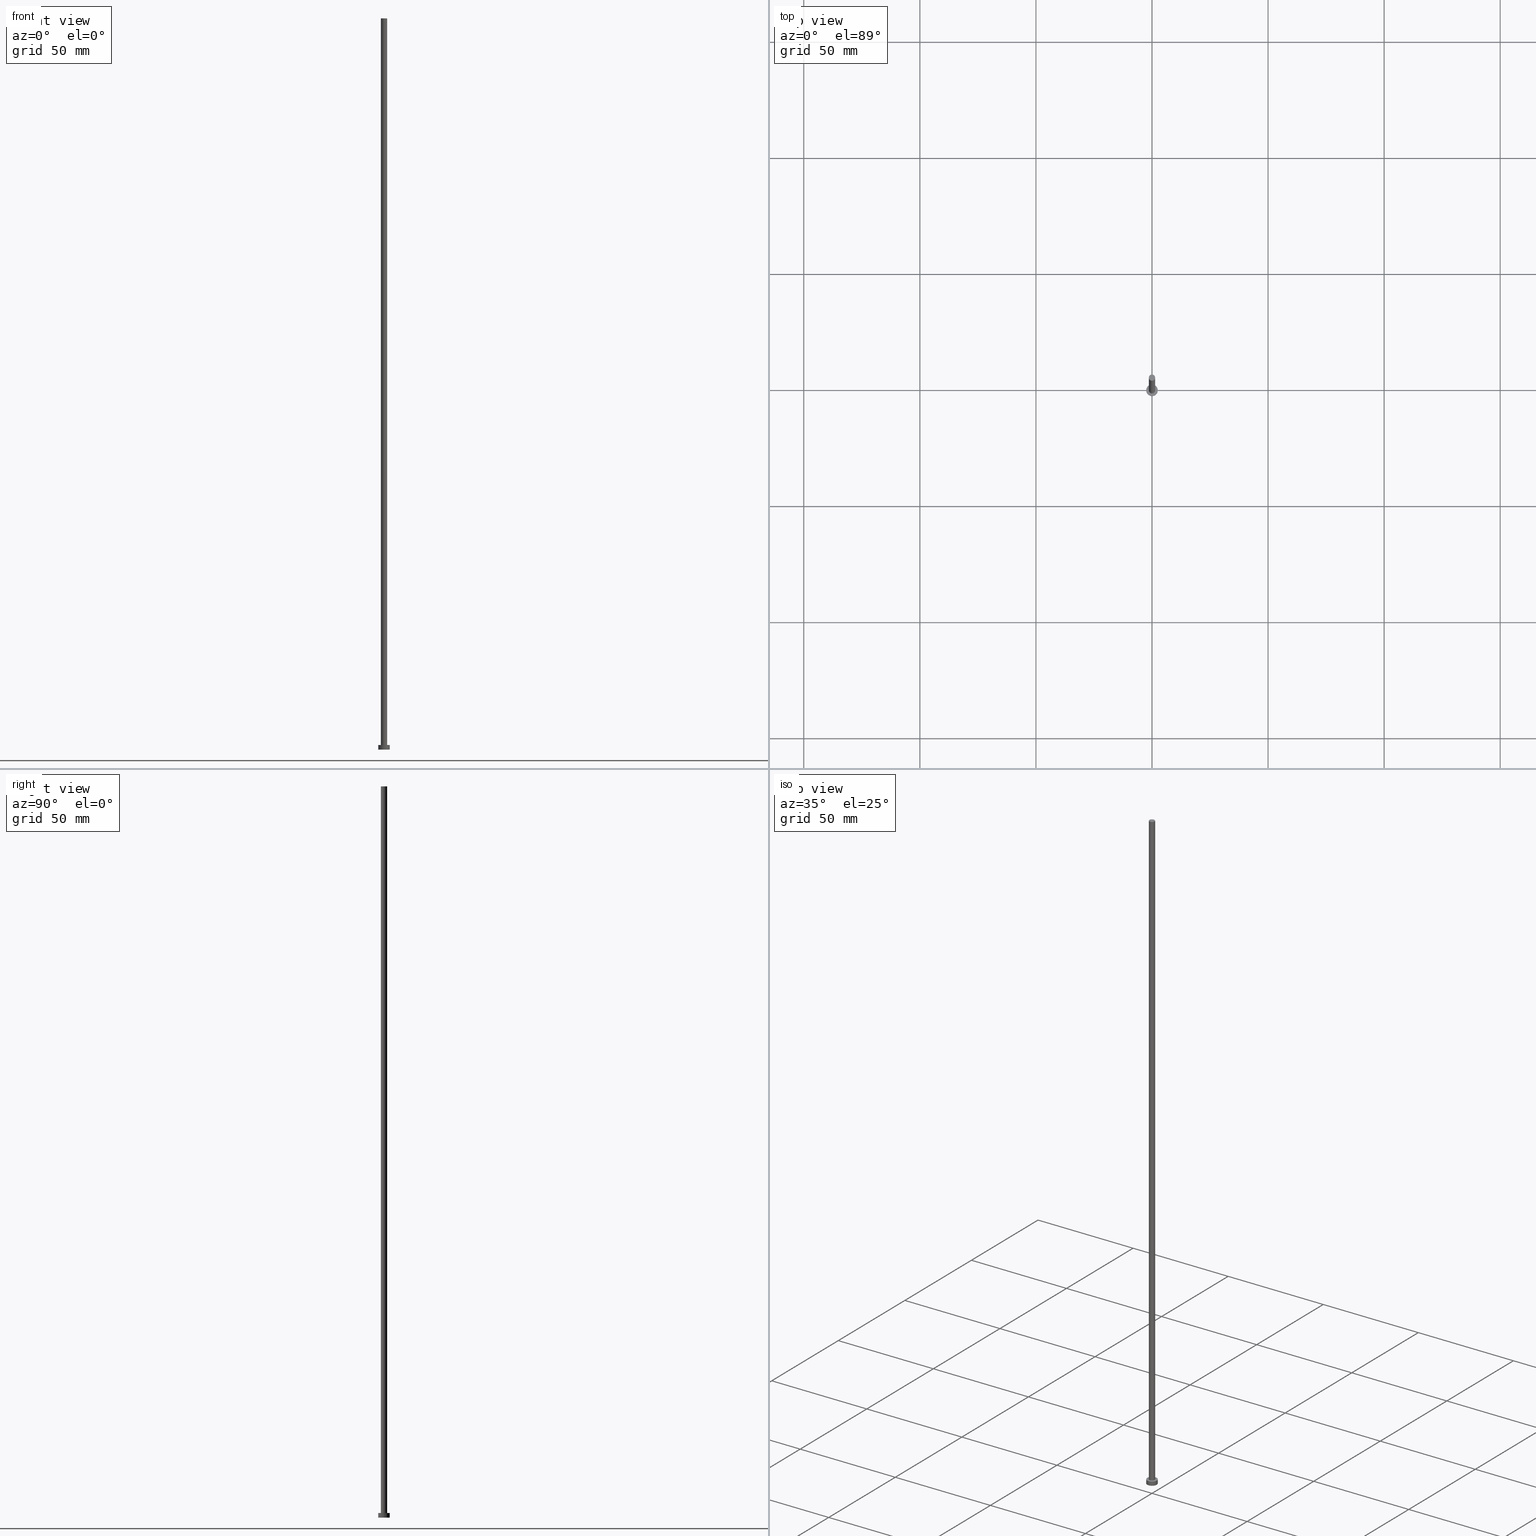
[diagram: canonical four-view strip — front | top / right | iso, engineering-drawing reading convention]
A machine part, canonical four-view strip (front | top / right | iso — engineering-drawing reading convention). The complete STEP part file that produces these views, byte-faithful:
ISO-10303-21;
HEADER;
FILE_DESCRIPTION (( 'STEP AP203' ),
    '1' );
FILE_NAME ('94ec.STEP',
    '2026-02-06T12:30:49',
    ( '' ),
    ( '' ),
    'SwSTEP 2.0',
    'SolidWorks 2019',
    '' );
FILE_SCHEMA (( 'CONFIG_CONTROL_DESIGN' ));
ENDSEC;

DATA;
#1 = DIRECTION ( 'NONE',  ( 1.000000000000000000, 0.000000000000000000, 0.000000000000000000 ) ) ;
#2 = CC_DESIGN_DATE_AND_TIME_ASSIGNMENT ( #198, #252, ( #116 ) ) ;
#3 = PRODUCT ( '94ec', '94ec', '', ( #18 ) ) ;
#4 = CC_DESIGN_PERSON_AND_ORGANIZATION_ASSIGNMENT ( #162, #229, ( #24 ) ) ;
#5 = ORIENTED_EDGE ( 'NONE', *, *, #188, .T. ) ;
#6 = DIRECTION ( 'NONE',  ( -0.000000000000000000, -0.000000000000000000, -1.000000000000000000 ) ) ;
#7 = CIRCLE ( 'NONE', #195, 2.500000000000000000 ) ;
#8 = ORIENTED_EDGE ( 'NONE', *, *, #137, .F. ) ;
#9 = APPROVAL_STATUS ( 'not_yet_approved' ) ;
#10 = CIRCLE ( 'NONE', #44, 1.350000000000000089 ) ;
#11 = DIRECTION ( 'NONE',  ( 1.000000000000000000, 0.000000000000000000, 0.000000000000000000 ) ) ;
#12 = VERTEX_POINT ( 'NONE', #126 ) ;
#13 = PERSON_AND_ORGANIZATION_ROLE ( 'creator' ) ;
#14 = CARTESIAN_POINT ( 'NONE',  ( 0.000000000000000000, 0.000000000000000000, 315.0000000000000000 ) ) ;
#15 = VECTOR ( 'NONE', #216, 1000.000000000000000 ) ;
#16 = CIRCLE ( 'NONE', #156, 1.350000000000000089 ) ;
#17 = AXIS2_PLACEMENT_3D ( 'NONE', #150, #75, #40 ) ;
#18 = MECHANICAL_CONTEXT ( 'NONE', #175, 'mechanical' ) ;
#19 = UNCERTAINTY_MEASURE_WITH_UNIT (LENGTH_MEASURE( 1.000000000000000082E-05 ), #118, 'distance_accuracy_value', 'NONE');
#20 = PERSON_AND_ORGANIZATION ( #218, #157 ) ;
#21 = AXIS2_PLACEMENT_3D ( 'NONE', #255, #234, #76 ) ;
#22 = CARTESIAN_POINT ( 'NONE',  ( -2.500000000000000000, 0.000000000000000000, 2.000000000000000000 ) ) ;
#23 = DIRECTION ( 'NONE',  ( -0.000000000000000000, -0.000000000000000000, -1.000000000000000000 ) ) ;
#24 = PRODUCT_DEFINITION_FORMATION_WITH_SPECIFIED_SOURCE ( 'LIBOVOLN�', '', #3, .NOT_KNOWN. ) ;
#25 = AXIS2_PLACEMENT_3D ( 'NONE', #38, #187, #125 ) ;
#26 = VECTOR ( 'NONE', #167, 1000.000000000000000 ) ;
#27 = EDGE_CURVE ( 'NONE', #122, #106, #89, .T. ) ;
#28 = EDGE_LOOP ( 'NONE', ( #203, #206 ) ) ;
#29 = CC_DESIGN_APPROVAL ( #139, ( #78 ) ) ;
#30 = ORIENTED_EDGE ( 'NONE', *, *, #239, .F. ) ;
#31 = DATE_AND_TIME ( #69, #212 ) ;
#32 = ADVANCED_FACE ( 'NONE', ( #147 ), #231, .T. ) ;
#33 = ORIENTED_EDGE ( 'NONE', *, *, #94, .T. ) ;
#34 = APPROVAL_ROLE ( '' ) ;
#35 = FACE_OUTER_BOUND ( 'NONE', #181, .T. ) ;
#36 = VERTEX_POINT ( 'NONE', #172 ) ;
#37 = CALENDAR_DATE ( 2026, 6, 2 ) ;
#38 = CARTESIAN_POINT ( 'NONE',  ( 0.000000000000000000, 0.000000000000000000, 2.000000000000000000 ) ) ;
#39 = CC_DESIGN_PERSON_AND_ORGANIZATION_ASSIGNMENT ( #244, #13, ( #78 ) ) ;
#40 = DIRECTION ( 'NONE',  ( 1.000000000000000000, 0.000000000000000000, 0.000000000000000000 ) ) ;
#41 =( GEOMETRIC_REPRESENTATION_CONTEXT ( 3 ) GLOBAL_UNCERTAINTY_ASSIGNED_CONTEXT ( ( #19 ) ) GLOBAL_UNIT_ASSIGNED_CONTEXT ( ( #118, #197, #211 ) ) REPRESENTATION_CONTEXT ( 'NONE', 'WORKASPACE' ) );
#42 = DIRECTION ( 'NONE',  ( 0.000000000000000000, 0.000000000000000000, 1.000000000000000000 ) ) ;
#43 = FACE_BOUND ( 'NONE', #104, .T. ) ;
#44 = AXIS2_PLACEMENT_3D ( 'NONE', #51, #230, #11 ) ;
#45 = CC_DESIGN_PERSON_AND_ORGANIZATION_ASSIGNMENT ( #184, #72, ( #116 ) ) ;
#46 = SHAPE_DEFINITION_REPRESENTATION ( #241, #158 ) ;
#47 = DIRECTION ( 'NONE',  ( 0.000000000000000000, 0.000000000000000000, 1.000000000000000000 ) ) ;
#48 = APPROVAL_PERSON_ORGANIZATION ( #95, #139, #232 ) ;
#49 = EDGE_CURVE ( 'NONE', #68, #145, #7, .T. ) ;
#50 = EDGE_LOOP ( 'NONE', ( #208, #242, #65, #117 ) ) ;
#51 = CARTESIAN_POINT ( 'NONE',  ( 0.000000000000000000, 0.000000000000000000, 315.0000000000000000 ) ) ;
#52 = EDGE_LOOP ( 'NONE', ( #186, #228 ) ) ;
#53 = DIRECTION ( 'NONE',  ( -0.000000000000000000, -0.000000000000000000, -1.000000000000000000 ) ) ;
#54 = ORIENTED_EDGE ( 'NONE', *, *, #49, .F. ) ;
#55 = COORDINATED_UNIVERSAL_TIME_OFFSET ( 1, 0, .AHEAD. ) ;
#56 = APPROVAL ( #148, 'NEUR�EN�' ) ;
#57 = CALENDAR_DATE ( 2026, 6, 2 ) ;
#58 = EDGE_CURVE ( 'NONE', #68, #36, #236, .T. ) ;
#59 = CARTESIAN_POINT ( 'NONE',  ( 0.000000000000000000, 0.000000000000000000, 315.0000000000000000 ) ) ;
#60 = AXIS2_PLACEMENT_3D ( 'NONE', #67, #53, #88 ) ;
#61 = DIRECTION ( 'NONE',  ( 0.000000000000000000, 0.000000000000000000, 1.000000000000000000 ) ) ;
#62 = VECTOR ( 'NONE', #141, 1000.000000000000000 ) ;
#63 = VERTEX_POINT ( 'NONE', #153 ) ;
#64 = COORDINATED_UNIVERSAL_TIME_OFFSET ( 1, 0, .AHEAD. ) ;
#65 = ORIENTED_EDGE ( 'NONE', *, *, #27, .T. ) ;
#66 = DIRECTION ( 'NONE',  ( -1.000000000000000000, 0.000000000000000000, 0.000000000000000000 ) ) ;
#67 = CARTESIAN_POINT ( 'NONE',  ( 0.000000000000000000, 0.000000000000000000, 315.0000000000000000 ) ) ;
#68 = VERTEX_POINT ( 'NONE', #134 ) ;
#69 = CALENDAR_DATE ( 2026, 6, 2 ) ;
#70 = FACE_OUTER_BOUND ( 'NONE', #52, .T. ) ;
#71 = EDGE_LOOP ( 'NONE', ( #120, #221 ) ) ;
#72 = PERSON_AND_ORGANIZATION_ROLE ( 'classification_officer' ) ;
#73 = APPROVAL ( #9, 'NEUR�EN�' ) ;
#74 = APPLICATION_PROTOCOL_DEFINITION ( 'international standard', 'config_control_design', 1994, #175 ) ;
#75 = DIRECTION ( 'NONE',  ( 0.000000000000000000, 0.000000000000000000, 1.000000000000000000 ) ) ;
#76 = DIRECTION ( 'NONE',  ( 1.000000000000000000, 0.000000000000000000, 0.000000000000000000 ) ) ;
#77 = LINE ( 'NONE', #193, #169 ) ;
#78 = PRODUCT_DEFINITION ( 'NEZN�M�', '', #24, #115 ) ;
#79 = LOCAL_TIME ( 13, 30, 49.00000000000000000, #55 ) ;
#80 = ADVANCED_FACE ( 'NONE', ( #43, #97 ), #110, .T. ) ;
#81 = CIRCLE ( 'NONE', #128, 2.500000000000000000 ) ;
#82 = ORIENTED_EDGE ( 'NONE', *, *, #27, .F. ) ;
#83 = CARTESIAN_POINT ( 'NONE',  ( 0.000000000000000000, 0.000000000000000000, 2.000000000000000000 ) ) ;
#84 = DIRECTION ( 'NONE',  ( 1.000000000000000000, 0.000000000000000000, 0.000000000000000000 ) ) ;
#85 = ORIENTED_EDGE ( 'NONE', *, *, #58, .F. ) ;
#86 = CALENDAR_DATE ( 2026, 6, 2 ) ;
#87 = AXIS2_PLACEMENT_3D ( 'NONE', #14, #227, #144 ) ;
#88 = DIRECTION ( 'NONE',  ( -1.000000000000000000, 0.000000000000000000, 0.000000000000000000 ) ) ;
#89 = LINE ( 'NONE', #130, #26 ) ;
#90 = PERSON_AND_ORGANIZATION ( #218, #157 ) ;
#91 = CARTESIAN_POINT ( 'NONE',  ( -1.350000000000000089, 0.000000000000000000, 2.000000000000000000 ) ) ;
#92 = AXIS2_PLACEMENT_3D ( 'NONE', #185, #226, #161 ) ;
#93 = APPROVAL_DATE_TIME ( #213, #139 ) ;
#94 = EDGE_CURVE ( 'NONE', #196, #36, #215, .T. ) ;
#95 = PERSON_AND_ORGANIZATION ( #218, #157 ) ;
#96 = CARTESIAN_POINT ( 'NONE',  ( 0.000000000000000000, 0.000000000000000000, 2.000000000000000000 ) ) ;
#97 = FACE_OUTER_BOUND ( 'NONE', #71, .T. ) ;
#98 = EDGE_CURVE ( 'NONE', #12, #63, #77, .T. ) ;
#99 = EDGE_CURVE ( 'NONE', #63, #106, #240, .T. ) ;
#100 = LOCAL_TIME ( 13, 30, 49.00000000000000000, #223 ) ;
#101 = EDGE_LOOP ( 'NONE', ( #30, #251, #33, #85 ) ) ;
#102 = CYLINDRICAL_SURFACE ( 'NONE', #190, 2.500000000000000000 ) ;
#103 = CARTESIAN_POINT ( 'NONE',  ( 2.500000000000000000, 3.061616997868383141E-16, 2.000000000000000000 ) ) ;
#104 = EDGE_LOOP ( 'NONE', ( #140, #142 ) ) ;
#105 = CYLINDRICAL_SURFACE ( 'NONE', #92, 1.350000000000000089 ) ;
#106 = VERTEX_POINT ( 'NONE', #91 ) ;
#107 = CARTESIAN_POINT ( 'NONE',  ( 2.500000000000000000, 3.061616997868383141E-16, 2.000000000000000000 ) ) ;
#108 = PERSON_AND_ORGANIZATION_ROLE ( 'design_owner' ) ;
#109 = APPLICATION_PROTOCOL_DEFINITION ( 'international standard', 'config_control_design', 1994, #138 ) ;
#110 = PLANE ( 'NONE',  #220 ) ;
#111 = CARTESIAN_POINT ( 'NONE',  ( 0.000000000000000000, 0.000000000000000000, 0.000000000000000000 ) ) ;
#112 = ADVANCED_FACE ( 'NONE', ( #166 ), #170, .T. ) ;
#113 = AXIS2_PLACEMENT_3D ( 'NONE', #59, #214, #155 ) ;
#114 = EDGE_CURVE ( 'NONE', #122, #12, #154, .T. ) ;
#115 = DESIGN_CONTEXT ( 'detailed design', #138, 'design' ) ;
#116 = SECURITY_CLASSIFICATION ( '', '', #249 ) ;
#117 = ORIENTED_EDGE ( 'NONE', *, *, #191, .T. ) ;
#118 =( LENGTH_UNIT ( ) NAMED_UNIT ( * ) SI_UNIT ( .MILLI., .METRE. ) );
#119 = PRODUCT_RELATED_PRODUCT_CATEGORY ( 'detail', '', ( #3 ) ) ;
#120 = ORIENTED_EDGE ( 'NONE', *, *, #49, .T. ) ;
#121 = CARTESIAN_POINT ( 'NONE',  ( 0.000000000000000000, 0.000000000000000000, 0.000000000000000000 ) ) ;
#122 = VERTEX_POINT ( 'NONE', #146 ) ;
#123 = CALENDAR_DATE ( 2026, 6, 2 ) ;
#124 = ADVANCED_FACE ( 'NONE', ( #70 ), #250, .F. ) ;
#125 = DIRECTION ( 'NONE',  ( -1.000000000000000000, 0.000000000000000000, 0.000000000000000000 ) ) ;
#126 = CARTESIAN_POINT ( 'NONE',  ( 1.350000000000000089, 1.653273178848926867E-16, 315.0000000000000000 ) ) ;
#127 = DATE_AND_TIME ( #37, #79 ) ;
#128 = AXIS2_PLACEMENT_3D ( 'NONE', #219, #179, #159 ) ;
#129 = FACE_OUTER_BOUND ( 'NONE', #164, .T. ) ;
#130 = CARTESIAN_POINT ( 'NONE',  ( -1.350000000000000089, 0.000000000000000000, 315.0000000000000000 ) ) ;
#131 = APPROVAL_DATE_TIME ( #127, #56 ) ;
#132 = COORDINATED_UNIVERSAL_TIME_OFFSET ( 1, 0, .AHEAD. ) ;
#133 = LOCAL_TIME ( 13, 30, 49.00000000000000000, #180 ) ;
#134 = CARTESIAN_POINT ( 'NONE',  ( -2.500000000000000000, 0.000000000000000000, 2.000000000000000000 ) ) ;
#135 = DIRECTION ( 'NONE',  ( 1.000000000000000000, 0.000000000000000000, 0.000000000000000000 ) ) ;
#136 = CC_DESIGN_DATE_AND_TIME_ASSIGNMENT ( #204, #165, ( #78 ) ) ;
#137 = EDGE_CURVE ( 'NONE', #12, #122, #10, .T. ) ;
#138 = APPLICATION_CONTEXT ( 'configuration controlled 3d designs of mechanical parts and assemblies' ) ;
#139 = APPROVAL ( #152, 'NEUR�EN�' ) ;
#140 = ORIENTED_EDGE ( 'NONE', *, *, #191, .F. ) ;
#141 = DIRECTION ( 'NONE',  ( -0.000000000000000000, -0.000000000000000000, -1.000000000000000000 ) ) ;
#142 = ORIENTED_EDGE ( 'NONE', *, *, #99, .F. ) ;
#143 = CARTESIAN_POINT ( 'NONE',  ( 0.000000000000000000, 0.000000000000000000, 2.000000000000000000 ) ) ;
#144 = DIRECTION ( 'NONE',  ( 1.000000000000000000, 0.000000000000000000, 0.000000000000000000 ) ) ;
#145 = VERTEX_POINT ( 'NONE', #107 ) ;
#146 = CARTESIAN_POINT ( 'NONE',  ( -1.350000000000000089, 0.000000000000000000, 315.0000000000000000 ) ) ;
#147 = FACE_OUTER_BOUND ( 'NONE', #28, .T. ) ;
#148 = APPROVAL_STATUS ( 'not_yet_approved' ) ;
#149 = MANIFOLD_SOLID_BREP ( 'P�idat vysunut�m3', #160 ) ;
#150 = CARTESIAN_POINT ( 'NONE',  ( 0.000000000000000000, 0.000000000000000000, 0.000000000000000000 ) ) ;
#151 = AXIS2_PLACEMENT_3D ( 'NONE', #111, #174, #1 ) ;
#152 = APPROVAL_STATUS ( 'not_yet_approved' ) ;
#153 = CARTESIAN_POINT ( 'NONE',  ( 1.350000000000000089, 1.653273178848926867E-16, 2.000000000000000000 ) ) ;
#154 = CIRCLE ( 'NONE', #87, 1.350000000000000089 ) ;
#155 = DIRECTION ( 'NONE',  ( 1.000000000000000000, 0.000000000000000000, -0.000000000000000000 ) ) ;
#156 = AXIS2_PLACEMENT_3D ( 'NONE', #143, #47, #84 ) ;
#157 = ORGANIZATION ( 'NEUR�EN�', 'NEUR�EN�', '' ) ;
#158 = ADVANCED_BREP_SHAPE_REPRESENTATION ( '94ec', ( #149, #17 ), #41 ) ;
#159 = DIRECTION ( 'NONE',  ( 1.000000000000000000, 0.000000000000000000, 0.000000000000000000 ) ) ;
#160 = CLOSED_SHELL ( 'NONE', ( #173, #217, #163, #80, #124, #112, #32 ) ) ;
#161 = DIRECTION ( 'NONE',  ( -1.000000000000000000, 0.000000000000000000, 0.000000000000000000 ) ) ;
#162 = PERSON_AND_ORGANIZATION ( #218, #157 ) ;
#163 = ADVANCED_FACE ( 'NONE', ( #129 ), #207, .T. ) ;
#164 = EDGE_LOOP ( 'NONE', ( #178, #54, #225, #5 ) ) ;
#165 = DATE_TIME_ROLE ( 'creation_date' ) ;
#166 = FACE_OUTER_BOUND ( 'NONE', #50, .T. ) ;
#167 = DIRECTION ( 'NONE',  ( -0.000000000000000000, -0.000000000000000000, -1.000000000000000000 ) ) ;
#168 = PERSON_AND_ORGANIZATION ( #218, #157 ) ;
#169 = VECTOR ( 'NONE', #23, 1000.000000000000000 ) ;
#170 = CYLINDRICAL_SURFACE ( 'NONE', #60, 1.350000000000000089 ) ;
#171 = CC_DESIGN_PERSON_AND_ORGANIZATION_ASSIGNMENT ( #168, #202, ( #24 ) ) ;
#172 = CARTESIAN_POINT ( 'NONE',  ( -2.500000000000000000, 0.000000000000000000, 0.000000000000000000 ) ) ;
#173 = ADVANCED_FACE ( 'NONE', ( #35 ), #105, .T. ) ;
#174 = DIRECTION ( 'NONE',  ( 0.000000000000000000, 0.000000000000000000, 1.000000000000000000 ) ) ;
#175 = APPLICATION_CONTEXT ( 'configuration controlled 3d designs of mechanical parts and assemblies' ) ;
#176 = DIRECTION ( 'NONE',  ( 1.000000000000000000, 0.000000000000000000, -0.000000000000000000 ) ) ;
#177 = APPROVAL_PERSON_ORGANIZATION ( #90, #56, #183 ) ;
#178 = ORIENTED_EDGE ( 'NONE', *, *, #210, .F. ) ;
#179 = DIRECTION ( 'NONE',  ( 0.000000000000000000, 0.000000000000000000, 1.000000000000000000 ) ) ;
#180 = COORDINATED_UNIVERSAL_TIME_OFFSET ( 1, 0, .AHEAD. ) ;
#181 = EDGE_LOOP ( 'NONE', ( #8, #248, #200, #82 ) ) ;
#182 = FACE_OUTER_BOUND ( 'NONE', #101, .T. ) ;
#183 = APPROVAL_ROLE ( '' ) ;
#184 = PERSON_AND_ORGANIZATION ( #218, #157 ) ;
#185 = CARTESIAN_POINT ( 'NONE',  ( 0.000000000000000000, 0.000000000000000000, 315.0000000000000000 ) ) ;
#186 = ORIENTED_EDGE ( 'NONE', *, *, #188, .F. ) ;
#187 = DIRECTION ( 'NONE',  ( -0.000000000000000000, -0.000000000000000000, -1.000000000000000000 ) ) ;
#188 = EDGE_CURVE ( 'NONE', #36, #196, #238, .T. ) ;
#189 = AXIS2_PLACEMENT_3D ( 'NONE', #121, #243, #222 ) ;
#190 = AXIS2_PLACEMENT_3D ( 'NONE', #83, #6, #66 ) ;
#191 = EDGE_CURVE ( 'NONE', #106, #63, #16, .T. ) ;
#192 = CARTESIAN_POINT ( 'NONE',  ( 0.000000000000000000, 0.000000000000000000, 2.000000000000000000 ) ) ;
#193 = CARTESIAN_POINT ( 'NONE',  ( 1.350000000000000089, 1.653273178848926867E-16, 315.0000000000000000 ) ) ;
#194 = LOCAL_TIME ( 13, 30, 49.00000000000000000, #132 ) ;
#195 = AXIS2_PLACEMENT_3D ( 'NONE', #192, #61, #135 ) ;
#196 = VERTEX_POINT ( 'NONE', #245 ) ;
#197 =( NAMED_UNIT ( * ) PLANE_ANGLE_UNIT ( ) SI_UNIT ( $, .RADIAN. ) );
#198 = DATE_AND_TIME ( #86, #100 ) ;
#199 = CC_DESIGN_APPROVAL ( #56, ( #24 ) ) ;
#200 = ORIENTED_EDGE ( 'NONE', *, *, #99, .T. ) ;
#201 = LINE ( 'NONE', #103, #62 ) ;
#202 = PERSON_AND_ORGANIZATION_ROLE ( 'creator' ) ;
#203 = ORIENTED_EDGE ( 'NONE', *, *, #114, .T. ) ;
#204 = DATE_AND_TIME ( #123, #133 ) ;
#205 = CARTESIAN_POINT ( 'NONE',  ( 0.000000000000000000, 0.000000000000000000, 0.000000000000000000 ) ) ;
#206 = ORIENTED_EDGE ( 'NONE', *, *, #137, .T. ) ;
#207 = CYLINDRICAL_SURFACE ( 'NONE', #25, 2.500000000000000000 ) ;
#208 = ORIENTED_EDGE ( 'NONE', *, *, #98, .F. ) ;
#209 = PERSON_AND_ORGANIZATION ( #218, #157 ) ;
#210 = EDGE_CURVE ( 'NONE', #145, #196, #201, .T. ) ;
#211 =( NAMED_UNIT ( * ) SI_UNIT ( $, .STERADIAN. ) SOLID_ANGLE_UNIT ( ) );
#212 = LOCAL_TIME ( 13, 30, 49.00000000000000000, #64 ) ;
#213 = DATE_AND_TIME ( #57, #194 ) ;
#214 = DIRECTION ( 'NONE',  ( 0.000000000000000000, 0.000000000000000000, 1.000000000000000000 ) ) ;
#215 = CIRCLE ( 'NONE', #151, 2.500000000000000000 ) ;
#216 = DIRECTION ( 'NONE',  ( -0.000000000000000000, -0.000000000000000000, -1.000000000000000000 ) ) ;
#217 = ADVANCED_FACE ( 'NONE', ( #182 ), #102, .T. ) ;
#218 = PERSON ( 'NEUR�EN�', 'NEUR�EN�', 'NEUR�EN�', ('NEUR�EN�'), ('NEUR�EN�'), ('NEUR�EN�') ) ;
#219 = CARTESIAN_POINT ( 'NONE',  ( 0.000000000000000000, 0.000000000000000000, 2.000000000000000000 ) ) ;
#220 = AXIS2_PLACEMENT_3D ( 'NONE', #96, #42, #176 ) ;
#221 = ORIENTED_EDGE ( 'NONE', *, *, #239, .T. ) ;
#222 = DIRECTION ( 'NONE',  ( 1.000000000000000000, 0.000000000000000000, 0.000000000000000000 ) ) ;
#223 = COORDINATED_UNIVERSAL_TIME_OFFSET ( 1, 0, .AHEAD. ) ;
#224 = CC_DESIGN_SECURITY_CLASSIFICATION ( #116, ( #24 ) ) ;
#225 = ORIENTED_EDGE ( 'NONE', *, *, #58, .T. ) ;
#226 = DIRECTION ( 'NONE',  ( -0.000000000000000000, -0.000000000000000000, -1.000000000000000000 ) ) ;
#227 = DIRECTION ( 'NONE',  ( 0.000000000000000000, 0.000000000000000000, 1.000000000000000000 ) ) ;
#228 = ORIENTED_EDGE ( 'NONE', *, *, #94, .F. ) ;
#229 = PERSON_AND_ORGANIZATION_ROLE ( 'design_supplier' ) ;
#230 = DIRECTION ( 'NONE',  ( 0.000000000000000000, 0.000000000000000000, 1.000000000000000000 ) ) ;
#231 = PLANE ( 'NONE',  #113 ) ;
#232 = APPROVAL_ROLE ( '' ) ;
#233 = APPROVAL_PERSON_ORGANIZATION ( #209, #73, #34 ) ;
#234 = DIRECTION ( 'NONE',  ( 0.000000000000000000, 0.000000000000000000, 1.000000000000000000 ) ) ;
#235 = AXIS2_PLACEMENT_3D ( 'NONE', #205, #253, #247 ) ;
#236 = LINE ( 'NONE', #22, #15 ) ;
#237 = CC_DESIGN_PERSON_AND_ORGANIZATION_ASSIGNMENT ( #20, #108, ( #3 ) ) ;
#238 = CIRCLE ( 'NONE', #189, 2.500000000000000000 ) ;
#239 = EDGE_CURVE ( 'NONE', #145, #68, #81, .T. ) ;
#240 = CIRCLE ( 'NONE', #21, 1.350000000000000089 ) ;
#241 = PRODUCT_DEFINITION_SHAPE ( 'NONE', 'NONE',  #78 ) ;
#242 = ORIENTED_EDGE ( 'NONE', *, *, #114, .F. ) ;
#243 = DIRECTION ( 'NONE',  ( 0.000000000000000000, 0.000000000000000000, 1.000000000000000000 ) ) ;
#244 = PERSON_AND_ORGANIZATION ( #218, #157 ) ;
#245 = CARTESIAN_POINT ( 'NONE',  ( 2.500000000000000000, 3.061616997868383141E-16, 0.000000000000000000 ) ) ;
#246 = APPROVAL_DATE_TIME ( #31, #73 ) ;
#247 = DIRECTION ( 'NONE',  ( 1.000000000000000000, 0.000000000000000000, -0.000000000000000000 ) ) ;
#248 = ORIENTED_EDGE ( 'NONE', *, *, #98, .T. ) ;
#249 = SECURITY_CLASSIFICATION_LEVEL ( 'unclassified' ) ;
#250 = PLANE ( 'NONE',  #235 ) ;
#251 = ORIENTED_EDGE ( 'NONE', *, *, #210, .T. ) ;
#252 = DATE_TIME_ROLE ( 'classification_date' ) ;
#253 = DIRECTION ( 'NONE',  ( 0.000000000000000000, 0.000000000000000000, 1.000000000000000000 ) ) ;
#254 = CC_DESIGN_APPROVAL ( #73, ( #116 ) ) ;
#255 = CARTESIAN_POINT ( 'NONE',  ( 0.000000000000000000, 0.000000000000000000, 2.000000000000000000 ) ) ;
ENDSEC;
END-ISO-10303-21;
